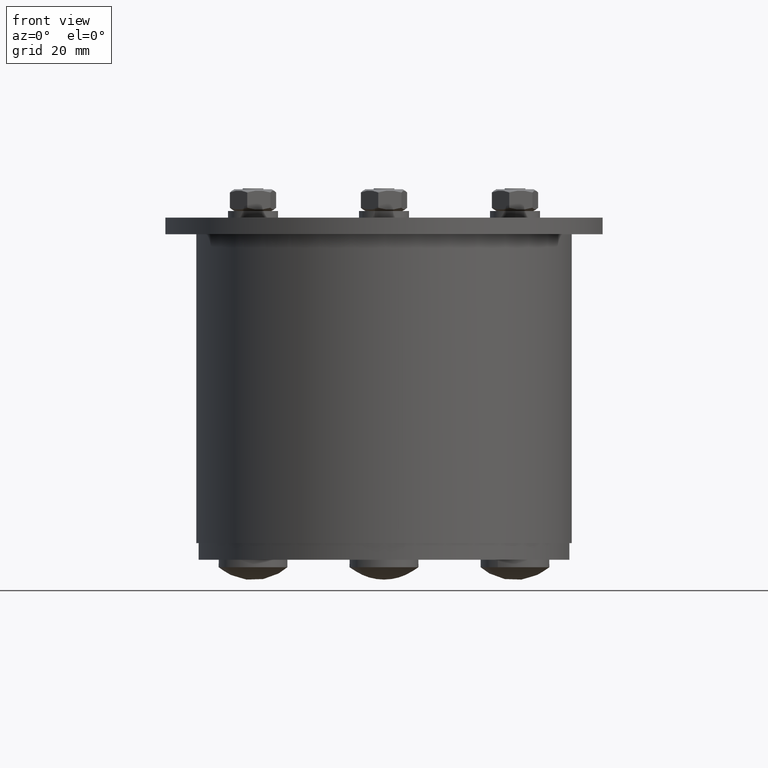
[diagram: clean part render]
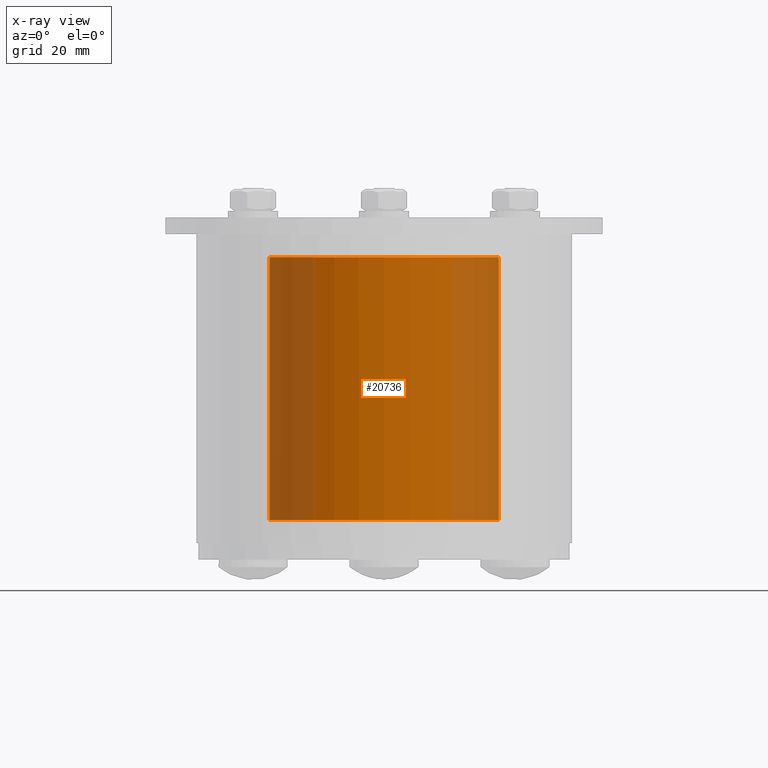
[diagram: x-ray — body ghosted, one internal face saturated and labeled with its STEP entity id]
A machine part, front view, then the same camera in x-ray: the body is ghosted and one INTERNAL B-rep face — a face not visible from any outside direction — is saturated and labeled: STEP entity #20736.
In plain terms, the highlighted cylindrical surface (partial cylindrical patch) has radius 27.5 mm, axis along (-0, 0, -1).
Its self-contained STEP definition (entity closure, byte-faithful):
#20695=CARTESIAN_POINT('',(0.0,0.0,0.0));
#20696=DIRECTION('',(0.0,0.0,1.0));
#20697=DIRECTION('',(1.0,0.0,0.0));
#20698=AXIS2_PLACEMENT_3D('',#20695,#20696,#20697);
#20699=CYLINDRICAL_SURFACE('',#20698,27.5);
#20700=CARTESIAN_POINT('',(27.5,0.0,0.0));
#20701=VERTEX_POINT('',#20700);
#20702=CARTESIAN_POINT('',(-27.5,0.0,0.0));
#20703=VERTEX_POINT('',#20702);
#20704=CARTESIAN_POINT('',(0.0,0.0,0.0));
#20705=DIRECTION('',(0.0,0.0,1.0));
#20706=DIRECTION('',(1.0,0.0,0.0));
#20707=AXIS2_PLACEMENT_3D('',#20704,#20705,#20706);
#20708=CIRCLE('',#20707,27.5);
#20709=EDGE_CURVE('',#20701,#20703,#20708,.T.);
#20710=ORIENTED_EDGE('',*,*,#20709,.T.);
#20711=CARTESIAN_POINT('',(-27.5,0.0,63.000000000000007));
#20712=VERTEX_POINT('',#20711);
#20713=CARTESIAN_POINT('',(-27.5,0.0,0.0));
#20714=DIRECTION('',(0.0,0.0,1.0));
#20715=VECTOR('',#20714,63.000000000000007);
#20716=LINE('',#20713,#20715);
#20717=EDGE_CURVE('',#20703,#20712,#20716,.T.);
#20718=ORIENTED_EDGE('',*,*,#20717,.T.);
#20719=CARTESIAN_POINT('',(27.5,0.0,63.000000000000007));
#20720=VERTEX_POINT('',#20719);
#20721=CARTESIAN_POINT('',(0.0,0.0,63.000000000000007));
#20722=DIRECTION('',(0.0,0.0,1.0));
#20723=DIRECTION('',(1.0,0.0,0.0));
#20724=AXIS2_PLACEMENT_3D('',#20721,#20722,#20723);
#20725=CIRCLE('',#20724,27.5);
#20726=EDGE_CURVE('',#20720,#20712,#20725,.T.);
#20727=ORIENTED_EDGE('',*,*,#20726,.F.);
#20728=CARTESIAN_POINT('',(27.5,0.0,0.0));
#20729=DIRECTION('',(0.0,0.0,1.0));
#20730=VECTOR('',#20729,63.000000000000007);
#20731=LINE('',#20728,#20730);
#20732=EDGE_CURVE('',#20701,#20720,#20731,.T.);
#20733=ORIENTED_EDGE('',*,*,#20732,.F.);
#20734=EDGE_LOOP('',(#20710,#20718,#20727,#20733));
#20735=FACE_OUTER_BOUND('',#20734,.T.);
#20736=ADVANCED_FACE('',(#20735),#20699,.T.);